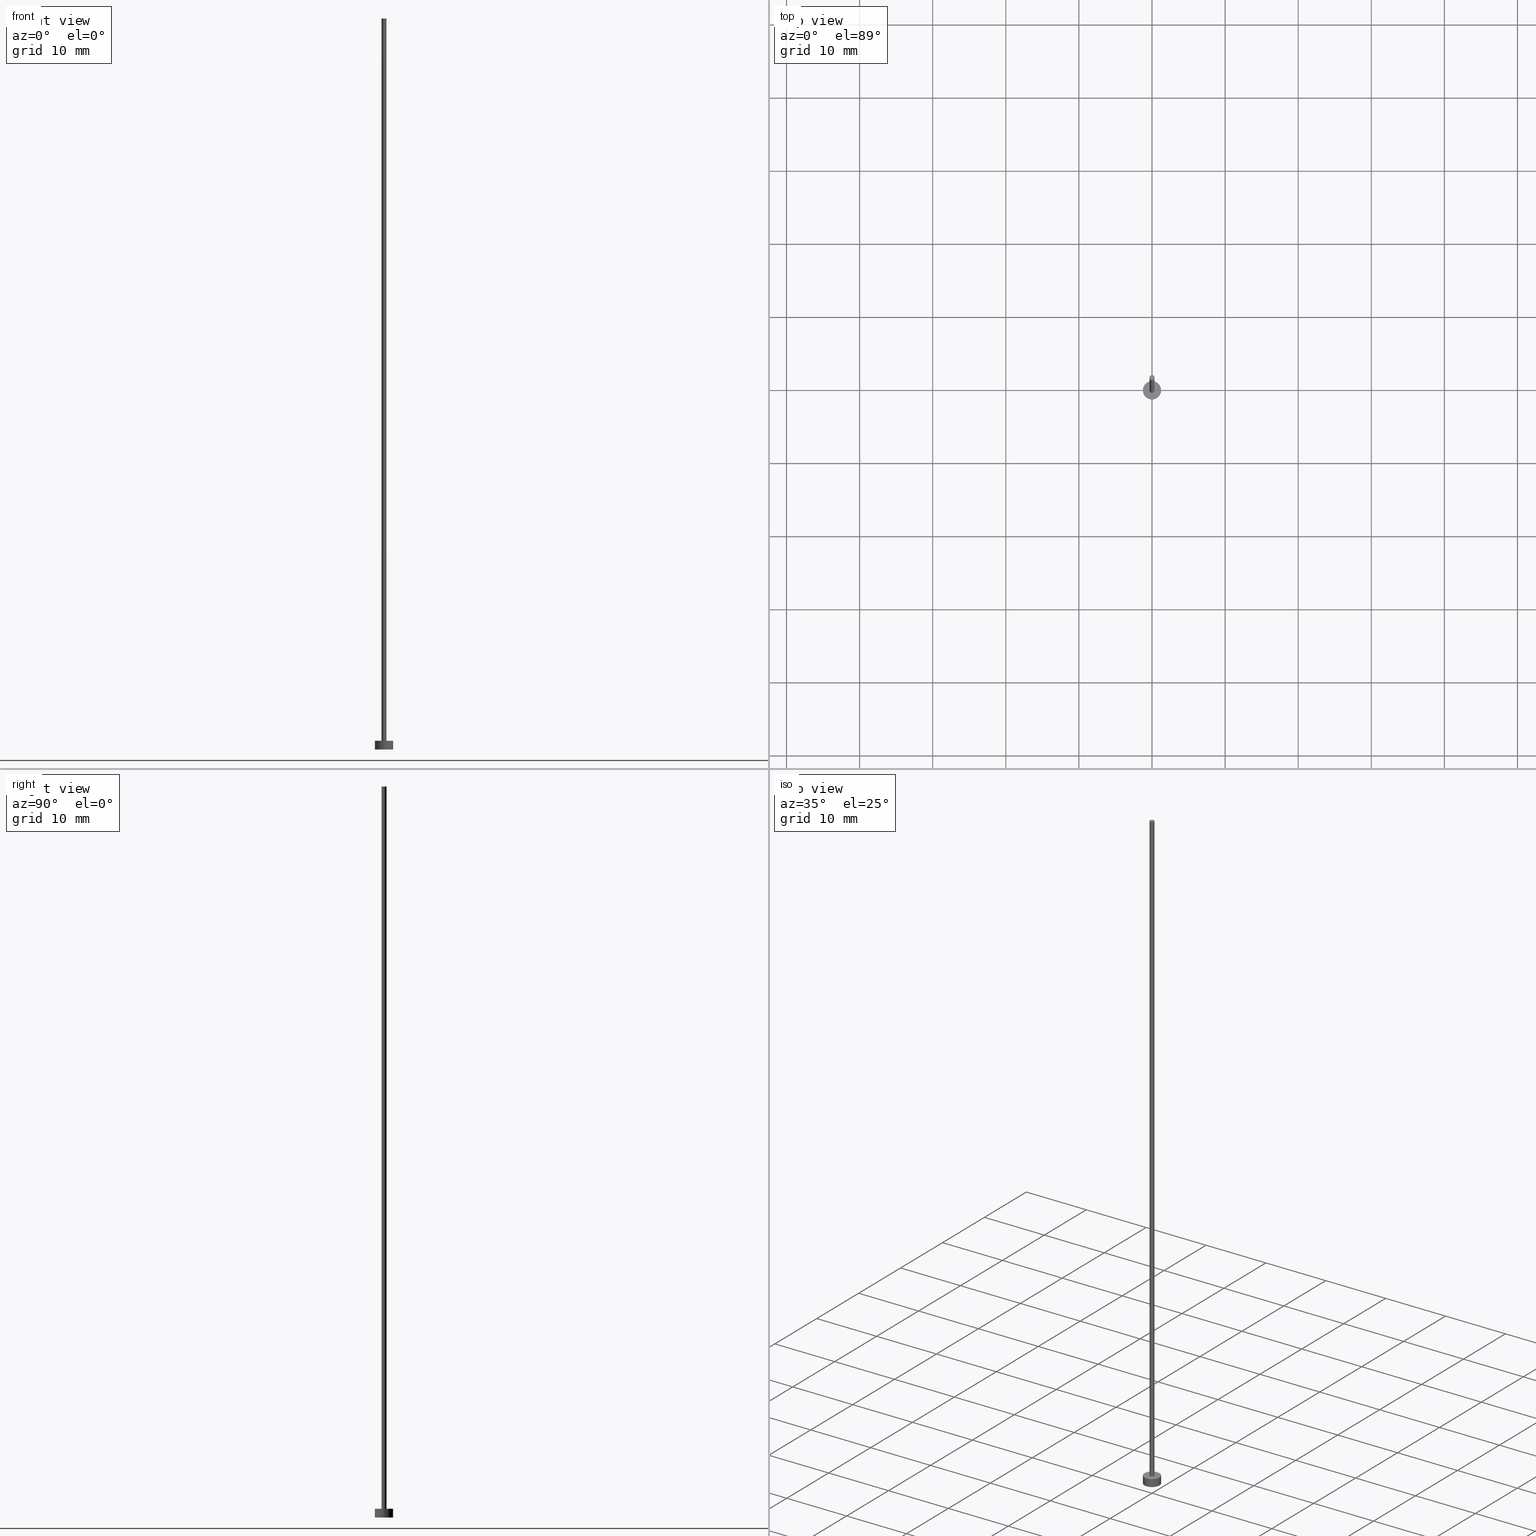
[diagram: canonical four-view strip — front | top / right | iso, engineering-drawing reading convention]
A machine part, canonical four-view strip (front | top / right | iso — engineering-drawing reading convention). The complete STEP part file that produces these views, byte-faithful:
ISO-10303-21;
HEADER;
FILE_DESCRIPTION (( 'STEP AP203' ),
    '1' );
FILE_NAME ('ed48.STEP',
    '2026-02-06T12:45:08',
    ( '' ),
    ( '' ),
    'SwSTEP 2.0',
    'SolidWorks 2019',
    '' );
FILE_SCHEMA (( 'CONFIG_CONTROL_DESIGN' ));
ENDSEC;

DATA;
#1 = FACE_OUTER_BOUND ( 'NONE', #85, .T. ) ;
#2 = PLANE ( 'NONE',  #221 ) ;
#3 = DIRECTION ( 'NONE',  ( 0.000000000000000000, 0.000000000000000000, 1.000000000000000000 ) ) ;
#4 = APPROVAL_PERSON_ORGANIZATION ( #138, #11, #105 ) ;
#5 = CARTESIAN_POINT ( 'NONE',  ( 0.000000000000000000, 0.000000000000000000, 0.000000000000000000 ) ) ;
#6 = VERTEX_POINT ( 'NONE', #139 ) ;
#7 = COORDINATED_UNIVERSAL_TIME_OFFSET ( 1, 0, .AHEAD. ) ;
#8 = CARTESIAN_POINT ( 'NONE',  ( 0.3499999999999999778, 4.286263797015735979E-17, 100.0000000000000000 ) ) ;
#9 = APPROVAL_STATUS ( 'not_yet_approved' ) ;
#10 = FACE_OUTER_BOUND ( 'NONE', #28, .T. ) ;
#11 = APPROVAL ( #205, 'NEUR�EN�' ) ;
#12 = EDGE_LOOP ( 'NONE', ( #46, #48, #118, #180 ) ) ;
#13 = MECHANICAL_CONTEXT ( 'NONE', #18, 'mechanical' ) ;
#14 = DIRECTION ( 'NONE',  ( 1.000000000000000000, 0.000000000000000000, 0.000000000000000000 ) ) ;
#15 = LOCAL_TIME ( 13, 45, 8.000000000000000000, #158 ) ;
#16 = CIRCLE ( 'NONE', #255, 0.3499999999999999778 ) ;
#17 = DIRECTION ( 'NONE',  ( -0.000000000000000000, -0.000000000000000000, -1.000000000000000000 ) ) ;
#18 = APPLICATION_CONTEXT ( 'configuration controlled 3d designs of mechanical parts and assemblies' ) ;
#19 = ORIENTED_EDGE ( 'NONE', *, *, #52, .F. ) ;
#20 = UNCERTAINTY_MEASURE_WITH_UNIT (LENGTH_MEASURE( 1.000000000000000082E-05 ), #167, 'distance_accuracy_value', 'NONE');
#21 = FACE_OUTER_BOUND ( 'NONE', #179, .T. ) ;
#22 = CARTESIAN_POINT ( 'NONE',  ( -0.3499999999999999778, 0.000000000000000000, 100.0000000000000000 ) ) ;
#23 = EDGE_CURVE ( 'NONE', #134, #66, #125, .T. ) ;
#24 = CC_DESIGN_APPROVAL ( #97, ( #126 ) ) ;
#25 = CARTESIAN_POINT ( 'NONE',  ( 0.000000000000000000, 0.000000000000000000, 0.000000000000000000 ) ) ;
#26 = DIRECTION ( 'NONE',  ( 0.000000000000000000, 0.000000000000000000, 1.000000000000000000 ) ) ;
#27 = CARTESIAN_POINT ( 'NONE',  ( 0.000000000000000000, 0.000000000000000000, 1.199999999999999956 ) ) ;
#28 = EDGE_LOOP ( 'NONE', ( #209, #84, #71, #19 ) ) ;
#29 = DIRECTION ( 'NONE',  ( 1.000000000000000000, 0.000000000000000000, 0.000000000000000000 ) ) ;
#30 = PRODUCT_DEFINITION ( 'NEZN�M�', '', #70, #111 ) ;
#31 = CIRCLE ( 'NONE', #190, 1.250000000000000000 ) ;
#32 = CALENDAR_DATE ( 2026, 6, 2 ) ;
#33 = CALENDAR_DATE ( 2026, 6, 2 ) ;
#34 = ORIENTED_EDGE ( 'NONE', *, *, #140, .F. ) ;
#35 = PERSON_AND_ORGANIZATION ( #183, #89 ) ;
#36 = PERSON_AND_ORGANIZATION ( #183, #89 ) ;
#37 = CIRCLE ( 'NONE', #203, 1.250000000000000000 ) ;
#38 = DIRECTION ( 'NONE',  ( 0.000000000000000000, 0.000000000000000000, 1.000000000000000000 ) ) ;
#39 = ORIENTED_EDGE ( 'NONE', *, *, #100, .T. ) ;
#40 = EDGE_CURVE ( 'NONE', #154, #6, #214, .T. ) ;
#41 = LOCAL_TIME ( 13, 45, 8.000000000000000000, #244 ) ;
#42 = CARTESIAN_POINT ( 'NONE',  ( 0.000000000000000000, 0.000000000000000000, 1.199999999999999956 ) ) ;
#43 = LINE ( 'NONE', #78, #132 ) ;
#44 = CARTESIAN_POINT ( 'NONE',  ( 0.000000000000000000, 0.000000000000000000, 100.0000000000000000 ) ) ;
#45 = CARTESIAN_POINT ( 'NONE',  ( -1.250000000000000000, 0.000000000000000000, 0.000000000000000000 ) ) ;
#46 = ORIENTED_EDGE ( 'NONE', *, *, #95, .F. ) ;
#47 = EDGE_CURVE ( 'NONE', #236, #104, #177, .T. ) ;
#48 = ORIENTED_EDGE ( 'NONE', *, *, #40, .F. ) ;
#49 = LINE ( 'NONE', #8, #93 ) ;
#50 = PERSON_AND_ORGANIZATION ( #183, #89 ) ;
#51 = CC_DESIGN_APPROVAL ( #166, ( #30 ) ) ;
#52 = EDGE_CURVE ( 'NONE', #154, #253, #150, .T. ) ;
#53 = PERSON_AND_ORGANIZATION ( #183, #89 ) ;
#54 = APPLICATION_PROTOCOL_DEFINITION ( 'international standard', 'config_control_design', 1994, #18 ) ;
#55 = COORDINATED_UNIVERSAL_TIME_OFFSET ( 1, 0, .AHEAD. ) ;
#56 = AXIS2_PLACEMENT_3D ( 'NONE', #135, #218, #57 ) ;
#57 = DIRECTION ( 'NONE',  ( 1.000000000000000000, 0.000000000000000000, 0.000000000000000000 ) ) ;
#58 = EDGE_CURVE ( 'NONE', #253, #195, #110, .T. ) ;
#59 = CYLINDRICAL_SURFACE ( 'NONE', #115, 0.3499999999999999778 ) ;
#60 = CARTESIAN_POINT ( 'NONE',  ( 0.000000000000000000, 0.000000000000000000, 0.000000000000000000 ) ) ;
#61 = DIRECTION ( 'NONE',  ( -0.000000000000000000, -0.000000000000000000, -1.000000000000000000 ) ) ;
#62 = DIRECTION ( 'NONE',  ( 0.000000000000000000, 0.000000000000000000, 1.000000000000000000 ) ) ;
#63 = DIRECTION ( 'NONE',  ( -0.000000000000000000, -0.000000000000000000, -1.000000000000000000 ) ) ;
#64 = DIRECTION ( 'NONE',  ( -0.000000000000000000, -0.000000000000000000, -1.000000000000000000 ) ) ;
#65 = FACE_OUTER_BOUND ( 'NONE', #185, .T. ) ;
#66 = VERTEX_POINT ( 'NONE', #164 ) ;
#67 = PRODUCT_RELATED_PRODUCT_CATEGORY ( 'detail', '', ( #238 ) ) ;
#68 = APPROVAL_DATE_TIME ( #156, #166 ) ;
#69 = APPROVAL_ROLE ( '' ) ;
#70 = PRODUCT_DEFINITION_FORMATION_WITH_SPECIFIED_SOURCE ( 'LIBOVOLN�', '', #238, .NOT_KNOWN. ) ;
#71 = ORIENTED_EDGE ( 'NONE', *, *, #140, .T. ) ;
#72 = SECURITY_CLASSIFICATION_LEVEL ( 'unclassified' ) ;
#73 = CARTESIAN_POINT ( 'NONE',  ( 0.000000000000000000, 0.000000000000000000, 100.0000000000000000 ) ) ;
#74 = APPROVAL_ROLE ( '' ) ;
#75 = DIRECTION ( 'NONE',  ( 0.000000000000000000, 0.000000000000000000, 1.000000000000000000 ) ) ;
#76 = CC_DESIGN_PERSON_AND_ORGANIZATION_ASSIGNMENT ( #246, #87, ( #70 ) ) ;
#77 = AXIS2_PLACEMENT_3D ( 'NONE', #119, #196, #29 ) ;
#78 = CARTESIAN_POINT ( 'NONE',  ( -1.250000000000000000, 0.000000000000000000, 1.199999999999999956 ) ) ;
#79 = CYLINDRICAL_SURFACE ( 'NONE', #144, 1.250000000000000000 ) ;
#80 = DIRECTION ( 'NONE',  ( 0.000000000000000000, 0.000000000000000000, 1.000000000000000000 ) ) ;
#81 = MANIFOLD_SOLID_BREP ( 'P�idat vysunut�m3', #169 ) ;
#82 = EDGE_CURVE ( 'NONE', #104, #236, #31, .T. ) ;
#83 = DIRECTION ( 'NONE',  ( -0.000000000000000000, -0.000000000000000000, -1.000000000000000000 ) ) ;
#84 = ORIENTED_EDGE ( 'NONE', *, *, #95, .T. ) ;
#85 = EDGE_LOOP ( 'NONE', ( #199, #98 ) ) ;
#86 = CALENDAR_DATE ( 2026, 6, 2 ) ;
#87 = PERSON_AND_ORGANIZATION_ROLE ( 'creator' ) ;
#88 = EDGE_LOOP ( 'NONE', ( #217, #34 ) ) ;
#89 = ORGANIZATION ( 'NEUR�EN�', 'NEUR�EN�', '' ) ;
#90 = APPROVAL_DATE_TIME ( #137, #11 ) ;
#91 = ADVANCED_FACE ( 'NONE', ( #10 ), #108, .T. ) ;
#92 = CARTESIAN_POINT ( 'NONE',  ( 0.000000000000000000, 0.000000000000000000, 1.199999999999999956 ) ) ;
#93 = VECTOR ( 'NONE', #64, 1000.000000000000000 ) ;
#94 = AXIS2_PLACEMENT_3D ( 'NONE', #131, #173, #151 ) ;
#95 = EDGE_CURVE ( 'NONE', #6, #195, #49, .T. ) ;
#96 = ORIENTED_EDGE ( 'NONE', *, *, #109, .T. ) ;
#97 = APPROVAL ( #9, 'NEUR�EN�' ) ;
#98 = ORIENTED_EDGE ( 'NONE', *, *, #215, .T. ) ;
#99 = DIRECTION ( 'NONE',  ( 1.000000000000000000, 0.000000000000000000, 0.000000000000000000 ) ) ;
#100 = EDGE_CURVE ( 'NONE', #66, #236, #43, .T. ) ;
#101 = DIRECTION ( 'NONE',  ( 1.000000000000000000, 0.000000000000000000, 0.000000000000000000 ) ) ;
#102 = ORIENTED_EDGE ( 'NONE', *, *, #23, .F. ) ;
#103 = ORIENTED_EDGE ( 'NONE', *, *, #250, .F. ) ;
#104 = VERTEX_POINT ( 'NONE', #232 ) ;
#105 = APPROVAL_ROLE ( '' ) ;
#106 = AXIS2_PLACEMENT_3D ( 'NONE', #92, #38, #14 ) ;
#107 = DATE_TIME_ROLE ( 'classification_date' ) ;
#108 = CYLINDRICAL_SURFACE ( 'NONE', #254, 0.3499999999999999778 ) ;
#109 = EDGE_CURVE ( 'NONE', #66, #134, #37, .T. ) ;
#110 = CIRCLE ( 'NONE', #106, 0.3499999999999999778 ) ;
#111 = DESIGN_CONTEXT ( 'detailed design', #222, 'design' ) ;
#112 = CC_DESIGN_PERSON_AND_ORGANIZATION_ASSIGNMENT ( #53, #162, ( #30 ) ) ;
#113 = CARTESIAN_POINT ( 'NONE',  ( 0.000000000000000000, 0.000000000000000000, 100.0000000000000000 ) ) ;
#114 = CC_DESIGN_PERSON_AND_ORGANIZATION_ASSIGNMENT ( #200, #141, ( #238 ) ) ;
#115 = AXIS2_PLACEMENT_3D ( 'NONE', #44, #63, #191 ) ;
#116 = DIRECTION ( 'NONE',  ( -1.000000000000000000, 0.000000000000000000, 0.000000000000000000 ) ) ;
#117 = LINE ( 'NONE', #149, #204 ) ;
#118 = ORIENTED_EDGE ( 'NONE', *, *, #52, .T. ) ;
#119 = CARTESIAN_POINT ( 'NONE',  ( 0.000000000000000000, 0.000000000000000000, 1.199999999999999956 ) ) ;
#120 = APPROVAL_STATUS ( 'not_yet_approved' ) ;
#121 = ORIENTED_EDGE ( 'NONE', *, *, #250, .T. ) ;
#122 = CALENDAR_DATE ( 2026, 6, 2 ) ;
#123 = ADVANCED_FACE ( 'NONE', ( #1 ), #174, .T. ) ;
#124 = CC_DESIGN_APPROVAL ( #11, ( #70 ) ) ;
#125 = CIRCLE ( 'NONE', #77, 1.250000000000000000 ) ;
#126 = SECURITY_CLASSIFICATION ( '', '', #72 ) ;
#127 = CARTESIAN_POINT ( 'NONE',  ( -0.3499999999999999778, 0.000000000000000000, 1.199999999999999956 ) ) ;
#128 = DIRECTION ( 'NONE',  ( 1.000000000000000000, 0.000000000000000000, -0.000000000000000000 ) ) ;
#129 = ADVANCED_FACE ( 'NONE', ( #21 ), #210, .T. ) ;
#130 = CARTESIAN_POINT ( 'NONE',  ( 0.000000000000000000, 0.000000000000000000, 1.199999999999999956 ) ) ;
#131 = CARTESIAN_POINT ( 'NONE',  ( 0.000000000000000000, 0.000000000000000000, 1.199999999999999956 ) ) ;
#132 = VECTOR ( 'NONE', #83, 1000.000000000000000 ) ;
#133 = DIRECTION ( 'NONE',  ( -0.000000000000000000, -0.000000000000000000, -1.000000000000000000 ) ) ;
#134 = VERTEX_POINT ( 'NONE', #189 ) ;
#135 = CARTESIAN_POINT ( 'NONE',  ( 0.000000000000000000, 0.000000000000000000, 100.0000000000000000 ) ) ;
#136 = DIRECTION ( 'NONE',  ( 1.000000000000000000, 0.000000000000000000, 0.000000000000000000 ) ) ;
#137 = DATE_AND_TIME ( #32, #41 ) ;
#138 = PERSON_AND_ORGANIZATION ( #183, #89 ) ;
#139 = CARTESIAN_POINT ( 'NONE',  ( 0.3499999999999999778, 4.286263797015735979E-17, 100.0000000000000000 ) ) ;
#140 = EDGE_CURVE ( 'NONE', #195, #253, #170, .T. ) ;
#141 = PERSON_AND_ORGANIZATION_ROLE ( 'design_owner' ) ;
#142 = DIRECTION ( 'NONE',  ( 1.000000000000000000, 0.000000000000000000, 0.000000000000000000 ) ) ;
#143 = EDGE_LOOP ( 'NONE', ( #171, #243 ) ) ;
#144 = AXIS2_PLACEMENT_3D ( 'NONE', #42, #133, #234 ) ;
#145 = ADVANCED_FACE ( 'NONE', ( #153, #146 ), #2, .T. ) ;
#146 = FACE_OUTER_BOUND ( 'NONE', #148, .T. ) ;
#147 = DIRECTION ( 'NONE',  ( 0.000000000000000000, 0.000000000000000000, 1.000000000000000000 ) ) ;
#148 = EDGE_LOOP ( 'NONE', ( #96, #220 ) ) ;
#149 = CARTESIAN_POINT ( 'NONE',  ( 1.250000000000000000, 1.530808498934191571E-16, 1.199999999999999956 ) ) ;
#150 = LINE ( 'NONE', #172, #249 ) ;
#151 = DIRECTION ( 'NONE',  ( 1.000000000000000000, 0.000000000000000000, 0.000000000000000000 ) ) ;
#152 = CC_DESIGN_SECURITY_CLASSIFICATION ( #126, ( #70 ) ) ;
#153 = FACE_BOUND ( 'NONE', #88, .T. ) ;
#154 = VERTEX_POINT ( 'NONE', #22 ) ;
#155 = AXIS2_PLACEMENT_3D ( 'NONE', #5, #225, #237 ) ;
#156 = DATE_AND_TIME ( #223, #247 ) ;
#157 = CC_DESIGN_PERSON_AND_ORGANIZATION_ASSIGNMENT ( #197, #175, ( #126 ) ) ;
#158 = COORDINATED_UNIVERSAL_TIME_OFFSET ( 1, 0, .AHEAD. ) ;
#159 = AXIS2_PLACEMENT_3D ( 'NONE', #25, #248, #136 ) ;
#160 =( GEOMETRIC_REPRESENTATION_CONTEXT ( 3 ) GLOBAL_UNCERTAINTY_ASSIGNED_CONTEXT ( ( #20 ) ) GLOBAL_UNIT_ASSIGNED_CONTEXT ( ( #167, #251, #187 ) ) REPRESENTATION_CONTEXT ( 'NONE', 'WORKASPACE' ) );
#161 = CC_DESIGN_DATE_AND_TIME_ASSIGNMENT ( #181, #107, ( #126 ) ) ;
#162 = PERSON_AND_ORGANIZATION_ROLE ( 'creator' ) ;
#163 = PERSON_AND_ORGANIZATION_ROLE ( 'design_supplier' ) ;
#164 = CARTESIAN_POINT ( 'NONE',  ( -1.250000000000000000, 0.000000000000000000, 1.199999999999999956 ) ) ;
#165 = AXIS2_PLACEMENT_3D ( 'NONE', #212, #61, #116 ) ;
#166 = APPROVAL ( #120, 'NEUR�EN�' ) ;
#167 =( LENGTH_UNIT ( ) NAMED_UNIT ( * ) SI_UNIT ( .MILLI., .METRE. ) );
#168 = DIRECTION ( 'NONE',  ( 1.000000000000000000, 0.000000000000000000, -0.000000000000000000 ) ) ;
#169 = CLOSED_SHELL ( 'NONE', ( #91, #227, #129, #145, #208, #233, #123 ) ) ;
#170 = CIRCLE ( 'NONE', #94, 0.3499999999999999778 ) ;
#171 = ORIENTED_EDGE ( 'NONE', *, *, #47, .F. ) ;
#172 = CARTESIAN_POINT ( 'NONE',  ( -0.3499999999999999778, 0.000000000000000000, 100.0000000000000000 ) ) ;
#173 = DIRECTION ( 'NONE',  ( 0.000000000000000000, 0.000000000000000000, 1.000000000000000000 ) ) ;
#174 = PLANE ( 'NONE',  #202 ) ;
#175 = PERSON_AND_ORGANIZATION_ROLE ( 'classification_officer' ) ;
#176 = ORIENTED_EDGE ( 'NONE', *, *, #82, .T. ) ;
#177 = CIRCLE ( 'NONE', #159, 1.250000000000000000 ) ;
#178 = APPLICATION_PROTOCOL_DEFINITION ( 'international standard', 'config_control_design', 1994, #222 ) ;
#179 = EDGE_LOOP ( 'NONE', ( #103, #239, #39, #224 ) ) ;
#180 = ORIENTED_EDGE ( 'NONE', *, *, #58, .T. ) ;
#181 = DATE_AND_TIME ( #122, #186 ) ;
#182 = SHAPE_DEFINITION_REPRESENTATION ( #192, #207 ) ;
#183 = PERSON ( 'NEUR�EN�', 'NEUR�EN�', 'NEUR�EN�', ('NEUR�EN�'), ('NEUR�EN�'), ('NEUR�EN�') ) ;
#184 = LOCAL_TIME ( 13, 45, 8.000000000000000000, #201 ) ;
#185 = EDGE_LOOP ( 'NONE', ( #102, #121, #176, #241 ) ) ;
#186 = LOCAL_TIME ( 13, 45, 8.000000000000000000, #55 ) ;
#187 =( NAMED_UNIT ( * ) SI_UNIT ( $, .STERADIAN. ) SOLID_ANGLE_UNIT ( ) );
#188 = CARTESIAN_POINT ( 'NONE',  ( 0.000000000000000000, 0.000000000000000000, 0.000000000000000000 ) ) ;
#189 = CARTESIAN_POINT ( 'NONE',  ( 1.250000000000000000, 1.530808498934191571E-16, 1.199999999999999956 ) ) ;
#190 = AXIS2_PLACEMENT_3D ( 'NONE', #60, #75, #142 ) ;
#191 = DIRECTION ( 'NONE',  ( -1.000000000000000000, 0.000000000000000000, 0.000000000000000000 ) ) ;
#192 = PRODUCT_DEFINITION_SHAPE ( 'NONE', 'NONE',  #30 ) ;
#193 = DIRECTION ( 'NONE',  ( -0.000000000000000000, -0.000000000000000000, -1.000000000000000000 ) ) ;
#194 = DIRECTION ( 'NONE',  ( -1.000000000000000000, 0.000000000000000000, 0.000000000000000000 ) ) ;
#195 = VERTEX_POINT ( 'NONE', #229 ) ;
#196 = DIRECTION ( 'NONE',  ( 0.000000000000000000, 0.000000000000000000, 1.000000000000000000 ) ) ;
#197 = PERSON_AND_ORGANIZATION ( #183, #89 ) ;
#198 = DIRECTION ( 'NONE',  ( -0.000000000000000000, -0.000000000000000000, -1.000000000000000000 ) ) ;
#199 = ORIENTED_EDGE ( 'NONE', *, *, #40, .T. ) ;
#200 = PERSON_AND_ORGANIZATION ( #183, #89 ) ;
#201 = COORDINATED_UNIVERSAL_TIME_OFFSET ( 1, 0, .AHEAD. ) ;
#202 = AXIS2_PLACEMENT_3D ( 'NONE', #113, #62, #252 ) ;
#203 = AXIS2_PLACEMENT_3D ( 'NONE', #27, #26, #99 ) ;
#204 = VECTOR ( 'NONE', #193, 1000.000000000000000 ) ;
#205 = APPROVAL_STATUS ( 'not_yet_approved' ) ;
#206 = CC_DESIGN_DATE_AND_TIME_ASSIGNMENT ( #226, #219, ( #30 ) ) ;
#207 = ADVANCED_BREP_SHAPE_REPRESENTATION ( 'ed48', ( #81, #155 ), #160 ) ;
#208 = ADVANCED_FACE ( 'NONE', ( #235 ), #211, .F. ) ;
#209 = ORIENTED_EDGE ( 'NONE', *, *, #215, .F. ) ;
#210 = CYLINDRICAL_SURFACE ( 'NONE', #165, 1.250000000000000000 ) ;
#211 = PLANE ( 'NONE',  #230 ) ;
#212 = CARTESIAN_POINT ( 'NONE',  ( 0.000000000000000000, 0.000000000000000000, 1.199999999999999956 ) ) ;
#213 = CARTESIAN_POINT ( 'NONE',  ( 0.000000000000000000, 0.000000000000000000, 100.0000000000000000 ) ) ;
#214 = CIRCLE ( 'NONE', #56, 0.3499999999999999778 ) ;
#215 = EDGE_CURVE ( 'NONE', #6, #154, #16, .T. ) ;
#216 = FACE_OUTER_BOUND ( 'NONE', #12, .T. ) ;
#217 = ORIENTED_EDGE ( 'NONE', *, *, #58, .F. ) ;
#218 = DIRECTION ( 'NONE',  ( 0.000000000000000000, 0.000000000000000000, 1.000000000000000000 ) ) ;
#219 = DATE_TIME_ROLE ( 'creation_date' ) ;
#220 = ORIENTED_EDGE ( 'NONE', *, *, #23, .T. ) ;
#221 = AXIS2_PLACEMENT_3D ( 'NONE', #130, #80, #168 ) ;
#222 = APPLICATION_CONTEXT ( 'configuration controlled 3d designs of mechanical parts and assemblies' ) ;
#223 = CALENDAR_DATE ( 2026, 6, 2 ) ;
#224 = ORIENTED_EDGE ( 'NONE', *, *, #47, .T. ) ;
#225 = DIRECTION ( 'NONE',  ( 0.000000000000000000, 0.000000000000000000, 1.000000000000000000 ) ) ;
#226 = DATE_AND_TIME ( #33, #15 ) ;
#227 = ADVANCED_FACE ( 'NONE', ( #65 ), #79, .T. ) ;
#228 = APPROVAL_PERSON_ORGANIZATION ( #35, #166, #69 ) ;
#229 = CARTESIAN_POINT ( 'NONE',  ( 0.3499999999999999778, 4.286263797015735979E-17, 1.199999999999999956 ) ) ;
#230 = AXIS2_PLACEMENT_3D ( 'NONE', #188, #147, #128 ) ;
#231 = APPROVAL_PERSON_ORGANIZATION ( #36, #97, #74 ) ;
#232 = CARTESIAN_POINT ( 'NONE',  ( 1.250000000000000000, 1.530808498934191571E-16, 0.000000000000000000 ) ) ;
#233 = ADVANCED_FACE ( 'NONE', ( #216 ), #59, .T. ) ;
#234 = DIRECTION ( 'NONE',  ( -1.000000000000000000, 0.000000000000000000, 0.000000000000000000 ) ) ;
#235 = FACE_OUTER_BOUND ( 'NONE', #143, .T. ) ;
#236 = VERTEX_POINT ( 'NONE', #45 ) ;
#237 = DIRECTION ( 'NONE',  ( 1.000000000000000000, 0.000000000000000000, 0.000000000000000000 ) ) ;
#238 = PRODUCT ( 'ed48', 'ed48', '', ( #13 ) ) ;
#239 = ORIENTED_EDGE ( 'NONE', *, *, #109, .F. ) ;
#240 = DATE_AND_TIME ( #86, #184 ) ;
#241 = ORIENTED_EDGE ( 'NONE', *, *, #100, .F. ) ;
#242 = APPROVAL_DATE_TIME ( #240, #97 ) ;
#243 = ORIENTED_EDGE ( 'NONE', *, *, #82, .F. ) ;
#244 = COORDINATED_UNIVERSAL_TIME_OFFSET ( 1, 0, .AHEAD. ) ;
#245 = CC_DESIGN_PERSON_AND_ORGANIZATION_ASSIGNMENT ( #50, #163, ( #70 ) ) ;
#246 = PERSON_AND_ORGANIZATION ( #183, #89 ) ;
#247 = LOCAL_TIME ( 13, 45, 8.000000000000000000, #7 ) ;
#248 = DIRECTION ( 'NONE',  ( 0.000000000000000000, 0.000000000000000000, 1.000000000000000000 ) ) ;
#249 = VECTOR ( 'NONE', #17, 1000.000000000000000 ) ;
#250 = EDGE_CURVE ( 'NONE', #134, #104, #117, .T. ) ;
#251 =( NAMED_UNIT ( * ) PLANE_ANGLE_UNIT ( ) SI_UNIT ( $, .RADIAN. ) );
#252 = DIRECTION ( 'NONE',  ( 1.000000000000000000, 0.000000000000000000, -0.000000000000000000 ) ) ;
#253 = VERTEX_POINT ( 'NONE', #127 ) ;
#254 = AXIS2_PLACEMENT_3D ( 'NONE', #73, #198, #194 ) ;
#255 = AXIS2_PLACEMENT_3D ( 'NONE', #213, #3, #101 ) ;
ENDSEC;
END-ISO-10303-21;
